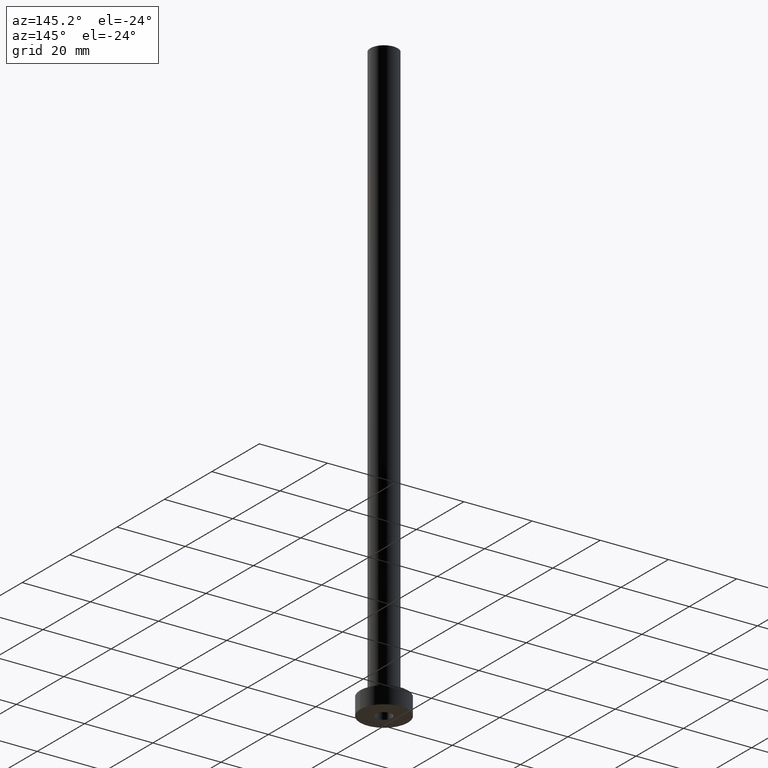
[diagram: clean part render]
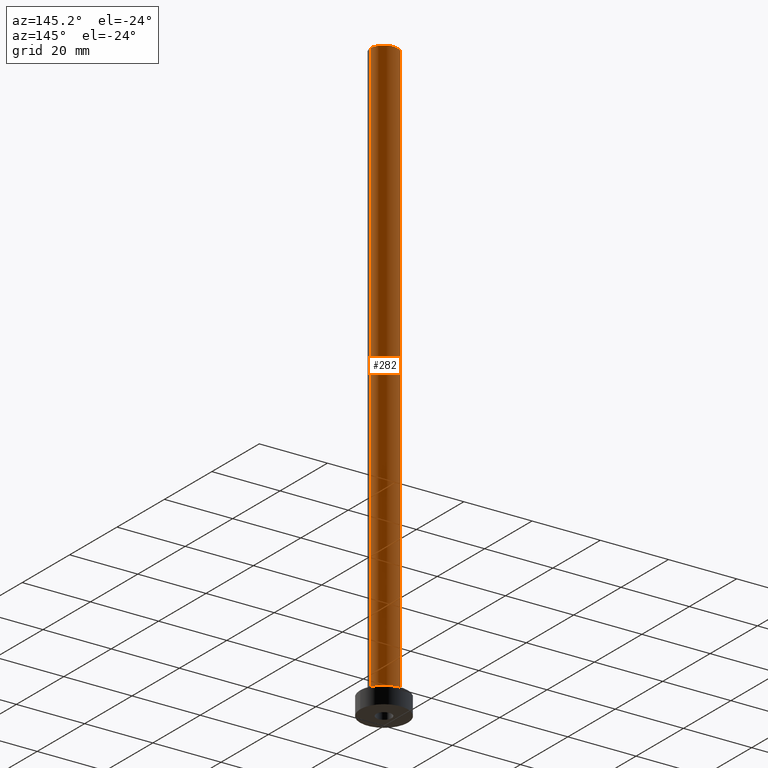
[diagram: same view with one face highlighted and labeled with its STEP entity id]
A machine part, auxiliary view. The second image highlights one B-rep face of the part: STEP entity #282.
In plain terms, the highlighted cylindrical surface (edge-blend (fillet) strip) has radius 4 mm, axis along (-0, -0, -1).
Its self-contained STEP definition (entity closure, byte-faithful):
#16 = CARTESIAN_POINT ( 'NONE',  ( 0.000000000000000000, 0.000000000000000000, 5.500000000000005329 ) ) ;
#42 = CARTESIAN_POINT ( 'NONE',  ( 0.000000000000000000, 0.000000000000000000, 175.0000000000000284 ) ) ;
#43 = CYLINDRICAL_SURFACE ( 'NONE', #199, 4.000000000000000000 ) ;
#53 = CIRCLE ( 'NONE', #320, 4.000000000000000000 ) ;
#54 = DIRECTION ( 'NONE',  ( -0.000000000000000000, -0.000000000000000000, -1.000000000000000000 ) ) ;
#61 = CARTESIAN_POINT ( 'NONE',  ( 4.000000000000000000, 4.898587196589412829E-16, 175.0000000000000284 ) ) ;
#74 = DIRECTION ( 'NONE',  ( -1.000000000000000000, 0.000000000000000000, 0.000000000000000000 ) ) ;
#92 = DIRECTION ( 'NONE',  ( -0.000000000000000000, -0.000000000000000000, -1.000000000000000000 ) ) ;
#112 = DIRECTION ( 'NONE',  ( 0.000000000000000000, 0.000000000000000000, 1.000000000000000000 ) ) ;
#114 = LINE ( 'NONE', #232, #115 ) ;
#115 = VECTOR ( 'NONE', #54, 1000.000000000000000 ) ;
#126 = AXIS2_PLACEMENT_3D ( 'NONE', #16, #112, #436 ) ;
#127 = ORIENTED_EDGE ( 'NONE', *, *, #398, .T. ) ;
#138 = ORIENTED_EDGE ( 'NONE', *, *, #346, .F. ) ;
#156 = ORIENTED_EDGE ( 'NONE', *, *, #275, .T. ) ;
#165 = CARTESIAN_POINT ( 'NONE',  ( 4.000000000000000000, 4.898587196589412829E-16, 175.0000000000000284 ) ) ;
#169 = CARTESIAN_POINT ( 'NONE',  ( -4.000000000000000000, 0.000000000000000000, 5.500000000000005329 ) ) ;
#172 = DIRECTION ( 'NONE',  ( -0.000000000000000000, -0.000000000000000000, -1.000000000000000000 ) ) ;
#175 = FACE_OUTER_BOUND ( 'NONE', #324, .T. ) ;
#181 = CARTESIAN_POINT ( 'NONE',  ( -4.000000000000000000, 0.000000000000000000, 175.0000000000000284 ) ) ;
#197 = DIRECTION ( 'NONE',  ( 1.000000000000000000, 0.000000000000000000, 0.000000000000000000 ) ) ;
#199 = AXIS2_PLACEMENT_3D ( 'NONE', #42, #172, #74 ) ;
#207 = DIRECTION ( 'NONE',  ( 0.000000000000000000, 0.000000000000000000, 1.000000000000000000 ) ) ;
#232 = CARTESIAN_POINT ( 'NONE',  ( -4.000000000000000000, 0.000000000000000000, 175.0000000000000284 ) ) ;
#241 = EDGE_CURVE ( 'NONE', #405, #301, #114, .T. ) ;
#245 = CIRCLE ( 'NONE', #126, 4.000000000000000000 ) ;
#248 = LINE ( 'NONE', #61, #417 ) ;
#260 = CARTESIAN_POINT ( 'NONE',  ( 0.000000000000000000, 0.000000000000000000, 175.0000000000000284 ) ) ;
#272 = CARTESIAN_POINT ( 'NONE',  ( 4.000000000000000000, 4.898587196589412829E-16, 5.500000000000005329 ) ) ;
#275 = EDGE_CURVE ( 'NONE', #316, #301, #245, .T. ) ;
#282 = ADVANCED_FACE ( 'NONE', ( #175 ), #43, .T. ) ;
#301 = VERTEX_POINT ( 'NONE', #169 ) ;
#316 = VERTEX_POINT ( 'NONE', #272 ) ;
#320 = AXIS2_PLACEMENT_3D ( 'NONE', #260, #207, #197 ) ;
#324 = EDGE_LOOP ( 'NONE', ( #138, #127, #156, #358 ) ) ;
#346 = EDGE_CURVE ( 'NONE', #355, #405, #53, .T. ) ;
#355 = VERTEX_POINT ( 'NONE', #165 ) ;
#358 = ORIENTED_EDGE ( 'NONE', *, *, #241, .F. ) ;
#398 = EDGE_CURVE ( 'NONE', #355, #316, #248, .T. ) ;
#405 = VERTEX_POINT ( 'NONE', #181 ) ;
#417 = VECTOR ( 'NONE', #92, 1000.000000000000000 ) ;
#436 = DIRECTION ( 'NONE',  ( 1.000000000000000000, 0.000000000000000000, 0.000000000000000000 ) ) ;